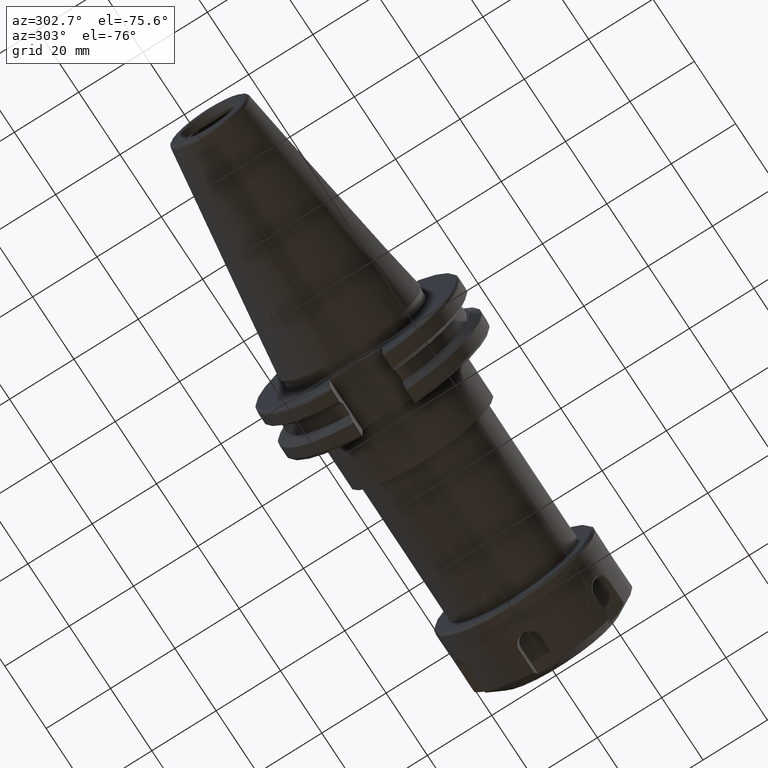
[diagram: clean part render]
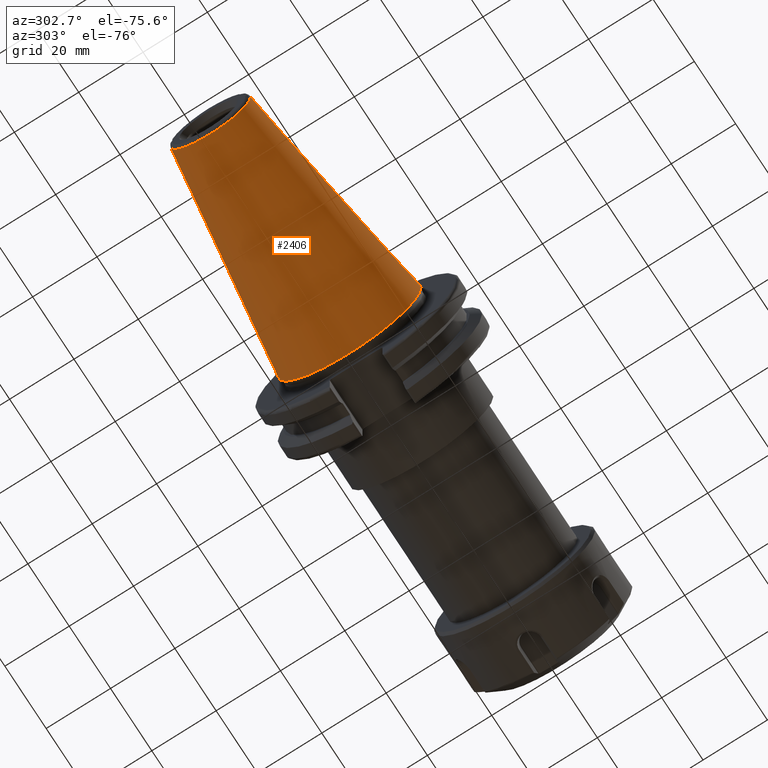
[diagram: same view with one face highlighted and labeled with its STEP entity id]
A machine part, auxiliary view. The second image highlights one B-rep face of the part: STEP entity #2406.
In plain terms, the highlighted conical surface has half-angle 8.297 deg.
Its self-contained STEP definition (entity closure, byte-faithful):
#373=FACE_OUTER_BOUND('',#522,.T.);
#522=EDGE_LOOP('',(#1802,#1803,#1804,#1805,#1806));
#695=LINE('',#3827,#849);
#849=VECTOR('',#3017,17.2484375);
#979=CIRCLE('',#2649,12.3966635780937);
#980=CIRCLE('',#2650,12.3966635780937);
#984=CIRCLE('',#2656,22.225);
#1136=VERTEX_POINT('',#3814);
#1137=VERTEX_POINT('',#3815);
#1140=VERTEX_POINT('',#3825);
#1388=EDGE_CURVE('',#1136,#1137,#979,.T.);
#1389=EDGE_CURVE('',#1137,#1136,#980,.T.);
#1393=EDGE_CURVE('',#1140,#1140,#984,.T.);
#1394=EDGE_CURVE('',#1140,#1137,#695,.T.);
#1802=ORIENTED_EDGE('',*,*,#1393,.F.);
#1803=ORIENTED_EDGE('',*,*,#1394,.T.);
#1804=ORIENTED_EDGE('',*,*,#1388,.F.);
#1805=ORIENTED_EDGE('',*,*,#1389,.F.);
#1806=ORIENTED_EDGE('',*,*,#1394,.F.);
#2359=CONICAL_SURFACE('',#2655,17.2484375,0.144812498238939);
#2406=ADVANCED_FACE('',(#373),#2359,.T.);
#2649=AXIS2_PLACEMENT_3D('',#3816,#3001,#3002);
#2650=AXIS2_PLACEMENT_3D('',#3817,#3003,#3004);
#2655=AXIS2_PLACEMENT_3D('',#3824,#3013,#3014);
#2656=AXIS2_PLACEMENT_3D('',#3826,#3015,#3016);
#3001=DIRECTION('center_axis',(-1.,0.,0.));
#3002=DIRECTION('ref_axis',(0.,-1.,3.06161699786838E-17));
#3003=DIRECTION('center_axis',(-1.,0.,0.));
#3004=DIRECTION('ref_axis',(0.,-1.,3.06161699786838E-17));
#3013=DIRECTION('center_axis',(1.,0.,0.));
#3014=DIRECTION('ref_axis',(0.,1.,0.));
#3015=DIRECTION('center_axis',(1.,0.,0.));
#3016=DIRECTION('ref_axis',(0.,0.,-1.));
#3017=DIRECTION('',(-0.989532981063282,0.144306893071729,1.76724974695192E-17));
#3814=CARTESIAN_POINT('',(-67.3943068930717,-1.5181534371019E-15,12.3966635780937));
#3815=CARTESIAN_POINT('',(-67.3943068930718,-12.3966635780937,-1.5181534371019E-15));
#3816=CARTESIAN_POINT('Origin',(-67.3943068930717,0.,-1.89769179637738E-15));
#3817=CARTESIAN_POINT('Origin',(-67.3943068930717,0.,-1.89769179637738E-15));
#3824=CARTESIAN_POINT('Origin',(-34.125,0.,0.));
#3825=CARTESIAN_POINT('',(0.,-22.225,-2.72177751110499E-15));
#3826=CARTESIAN_POINT('Origin',(0.,0.,0.));
#3827=CARTESIAN_POINT('',(-34.125,-17.2484375,-2.11232437746682E-15));